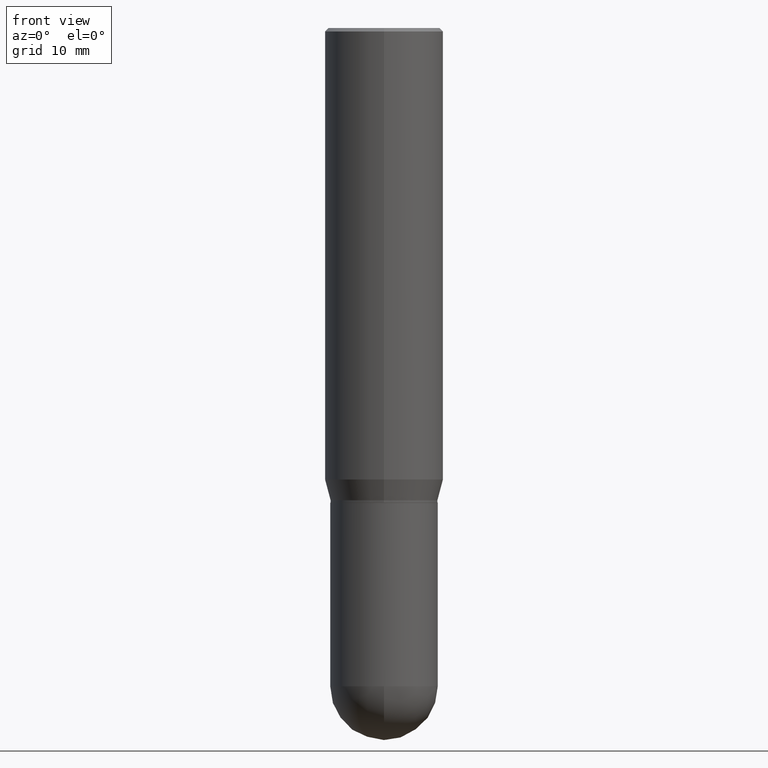
[diagram: clean part render]
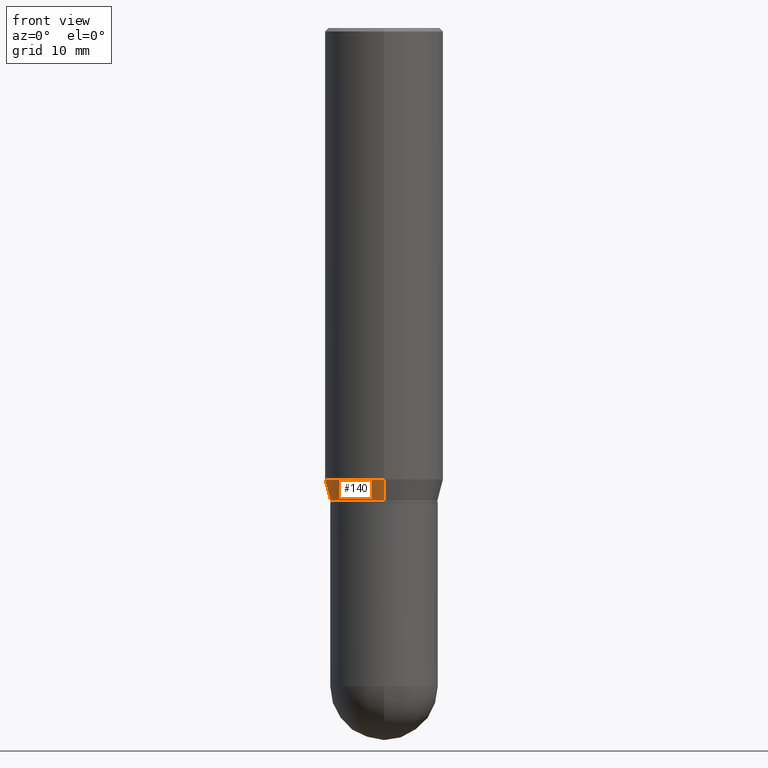
[diagram: same view with one face highlighted and labeled with its STEP entity id]
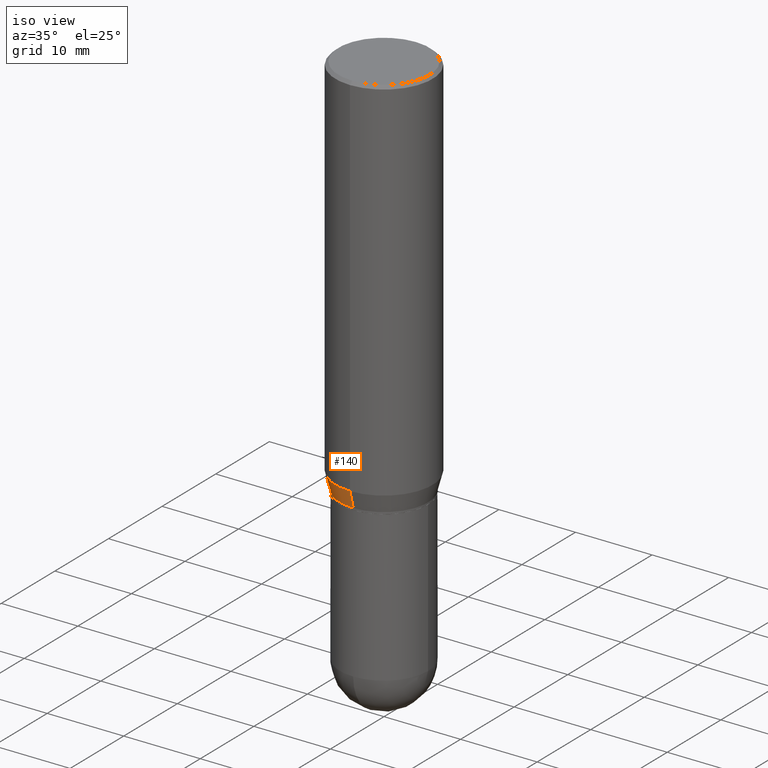
[diagram: same view with one face highlighted and labeled with its STEP entity id]
A machine part, front view. The second image highlights one B-rep face of the part: STEP entity #140.
A second angle (iso view) of the same face is appended — the face is thin or edge-on in the first view.
In plain terms, the highlighted conical surface has half-angle 15 deg.
Its self-contained STEP definition (entity closure, byte-faithful):
#7 = DIRECTION ( 'NONE',  ( -6.982962677686265922E-15, -1.000000000000000000, 3.617543138818270030E-15 ) ) ;
#12 = CARTESIAN_POINT ( 'NONE',  ( 1.776356839400296613E-15, 0.2499999999999933664, -1.902483408562511302 ) ) ;
#48 = CARTESIAN_POINT ( 'NONE',  ( -1.581990194629774423E-15, -0.2265500000000069125, -1.989999999999999547 ) ) ;
#54 = CARTESIAN_POINT ( 'NONE',  ( 4.866651878547998394E-29, -6.947805912210510858E-15, -1.990000000000000435 ) ) ;
#67 = VERTEX_POINT ( 'NONE', #268 ) ;
#71 = EDGE_LOOP ( 'NONE', ( #333, #398, #503, #447 ) ) ;
#79 = VERTEX_POINT ( 'NONE', #438 ) ;
#86 = VECTOR ( 'NONE', #249, 39.37007874015748854 ) ;
#94 = CARTESIAN_POINT ( 'NONE',  ( 1.609734567864555299E-15, 0.2265499999999930347, -1.990000000000001101 ) ) ;
#105 = DIRECTION ( 'NONE',  ( -6.982962677686265922E-15, -1.000000000000000000, 3.617543138818270030E-15 ) ) ;
#128 = CIRCLE ( 'NONE', #196, 0.2500000000000000000 ) ;
#140 = ADVANCED_FACE ( 'NONE', ( #367 ), #169, .T. ) ;
#153 = EDGE_CURVE ( 'NONE', #79, #225, #471, .T. ) ;
#169 = CONICAL_SURFACE ( 'NONE', #492, 0.2265499999999999736, 0.2617993877991505181 ) ;
#171 = CARTESIAN_POINT ( 'NONE',  ( 4.866651878547998394E-29, -6.947805912210510858E-15, -1.990000000000000435 ) ) ;
#196 = AXIS2_PLACEMENT_3D ( 'NONE', #243, #417, #491 ) ;
#204 = LINE ( 'NONE', #48, #247 ) ;
#225 = VERTEX_POINT ( 'NONE', #296 ) ;
#243 = CARTESIAN_POINT ( 'NONE',  ( 4.652625353862883920E-29, -6.642254006981412972E-15, -1.902483408562510414 ) ) ;
#247 = VECTOR ( 'NONE', #443, 39.37007874015748854 ) ;
#249 = DIRECTION ( 'NONE',  ( 1.839019923739601893E-15, 0.2588190451025252359, 0.9659258262890670910 ) ) ;
#268 = CARTESIAN_POINT ( 'NONE',  ( -1.745740669421519543E-15, -0.2500000000000066058, -1.902483408562509748 ) ) ;
#296 = CARTESIAN_POINT ( 'NONE',  ( -1.581990194629774423E-15, -0.2265500000000069125, -1.989999999999999547 ) ) ;
#300 = AXIS2_PLACEMENT_3D ( 'NONE', #54, #478, #105 ) ;
#333 = ORIENTED_EDGE ( 'NONE', *, *, #351, .F. ) ;
#351 = EDGE_CURVE ( 'NONE', #79, #499, #450, .T. ) ;
#367 = FACE_OUTER_BOUND ( 'NONE', #71, .T. ) ;
#398 = ORIENTED_EDGE ( 'NONE', *, *, #153, .T. ) ;
#401 = DIRECTION ( 'NONE',  ( -2.445553707813064024E-29, 3.491359754879653000E-15, 1.000000000000000000 ) ) ;
#417 = DIRECTION ( 'NONE',  ( -2.445553707813064024E-29, 3.491359754879653000E-15, 1.000000000000000000 ) ) ;
#421 = EDGE_CURVE ( 'NONE', #225, #67, #204, .T. ) ;
#438 = CARTESIAN_POINT ( 'NONE',  ( 1.693045703632425956E-15, 0.2265499999999930347, -1.990000000000001101 ) ) ;
#443 = DIRECTION ( 'NONE',  ( -1.807323732225331717E-15, -0.2588190451025184080, 0.9659258262890689783 ) ) ;
#447 = ORIENTED_EDGE ( 'NONE', *, *, #512, .F. ) ;
#450 = LINE ( 'NONE', #94, #86 ) ;
#471 = CIRCLE ( 'NONE', #300, 0.2265499999999999736 ) ;
#478 = DIRECTION ( 'NONE',  ( -2.445553707813064024E-29, 3.491359754879653000E-15, 1.000000000000000000 ) ) ;
#491 = DIRECTION ( 'NONE',  ( -6.982962677686265922E-15, -1.000000000000000000, 3.278217592397115862E-15 ) ) ;
#492 = AXIS2_PLACEMENT_3D ( 'NONE', #171, #401, #7 ) ;
#499 = VERTEX_POINT ( 'NONE', #12 ) ;
#503 = ORIENTED_EDGE ( 'NONE', *, *, #421, .T. ) ;
#512 = EDGE_CURVE ( 'NONE', #499, #67, #128, .T. ) ;